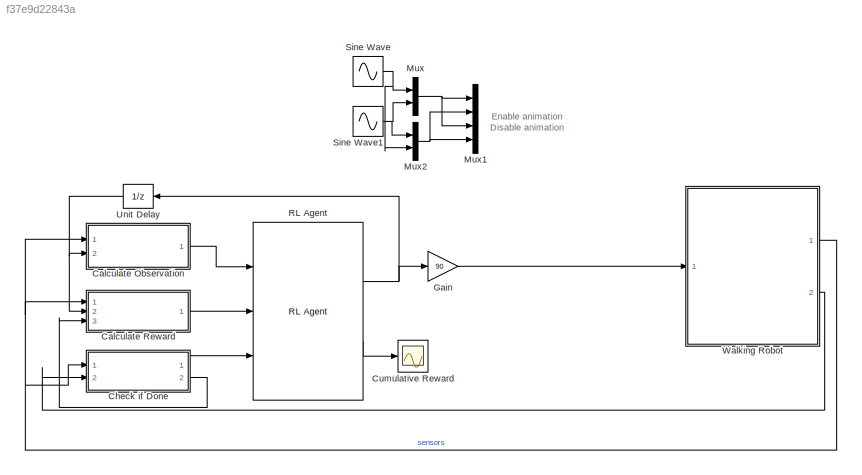
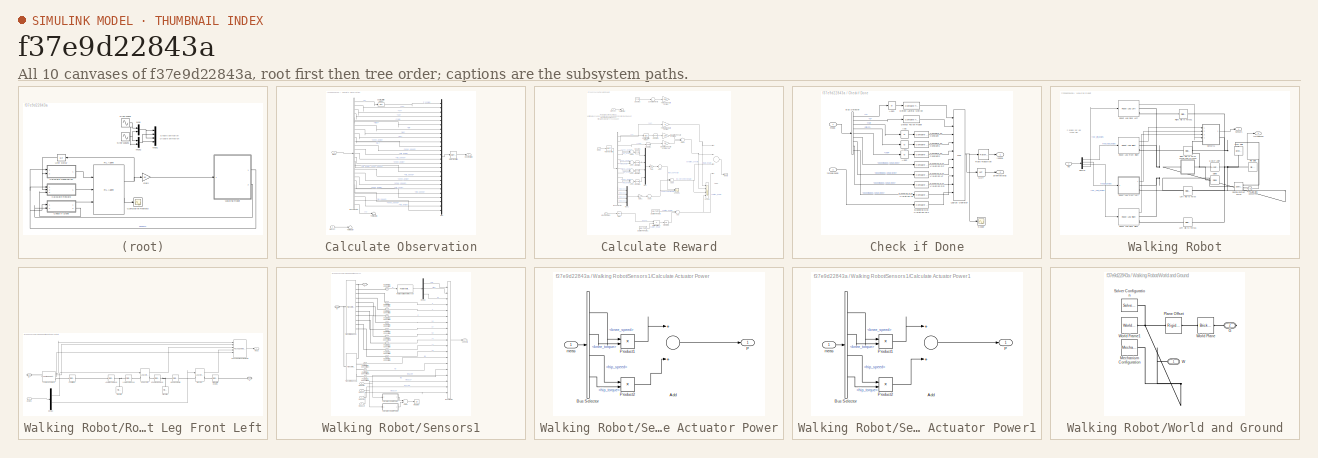
[diagram: thumbnail index - all 10 canvases of the model, root first then tree order]
MODEL slx_f37e9d22843a
KIND model
CONFIG AbsTol = auto
CONFIG EnableMultiTasking = on
CONFIG FixedStep = auto
CONFIG MaxStep = auto
CONFIG MinStep = auto
CONFIG PreLoadFcn = robotParameters\n
CONFIG RelTol = 1e-2
CONFIG SampleTimeConstraint = Unconstrained
CONFIG Solver = ode23t
CONFIG SolverName = ode23t
CONFIG StartTime = 0.0
CONFIG StopTime = Tf
BLOCK [SubSystem] Calculate Observation
  Ports = [2, 1]
  RequestExecContextInheritance = off
BLOCK [BusSelector] Calculate Observation/Bus Selector
  OutputAsBus = off
  OutputSignals = Z,VX,VY,VZ,yaw,pitch,roll,wx,wy,wz,measRF.knee_angle,measRF.knee_speed,measRF.hip_angle,measRF.hip_speed,measLF.knee_angle,measLF.knee_speed,measLF.hip_angle,measLF.hip_speed,measRR.knee_angle,measRR.knee_speed,measRR.hip_angle,measRR.hip_speed,measLR.knee_angle,measLR.knee_speed,measLR.hip_angle,measLR.hip_speed,Y
  Ports = [1, 27]
BLOCK [Mux] Calculate Observation/Mux
  DisplayOption = bar
  Inputs = 26
  Ports = [26, 1]
BLOCK [RateTransition] Calculate Observation/Rate Transition
BLOCK [Bias] Calculate Observation/Subtract Initial Height
  Bias = -init_height/100
  SaturateOnIntegerOverflow = off
BLOCK [Terminator] Calculate Observation/Terminator
BLOCK [Terminator] Calculate Observation/Terminator1
BLOCK [Inport] Calculate Observation/meas
  IconDisplay = Port number
BLOCK [Outport] Calculate Observation/observation
  IconDisplay = Port number
  VectorParamsAs1DForOutWhenUnconnected = off
BLOCK [Inport] Calculate Observation/prevAct
  IconDisplay = Port number
  Port = 2
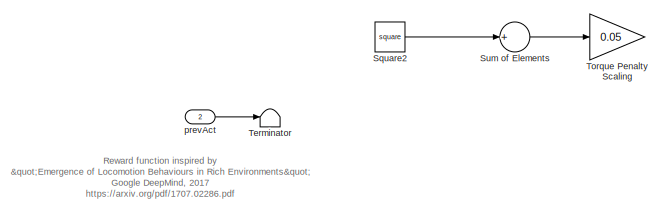
[diagram: Calculate Reward - part 1/2, top left region]
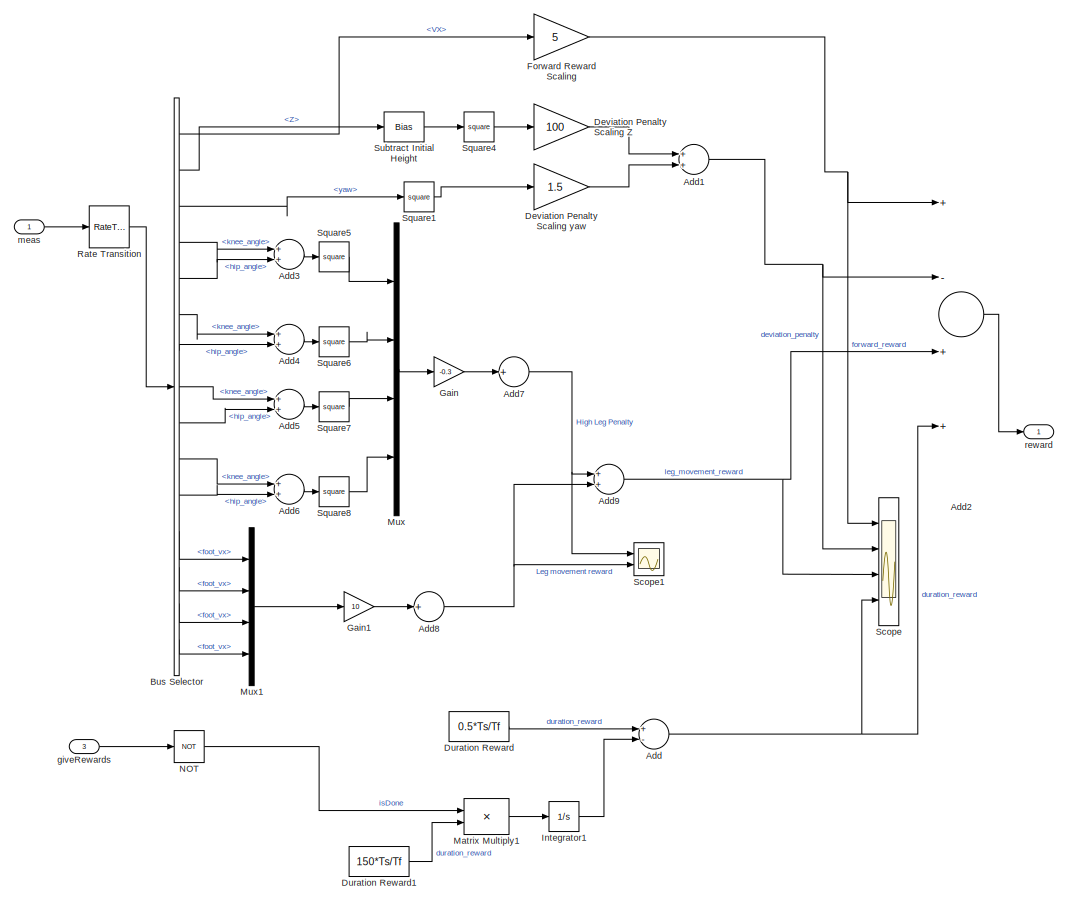
[diagram: Calculate Reward - part 2/2, most of the canvas]
BLOCK [SubSystem] Calculate Reward
  Ports = [3, 1]
  RequestExecContextInheritance = off
BLOCK [Sum] Calculate Reward/Add
  InputSameDT = off
  Inputs = +-
  OutDataTypeStr = Inherit: Inherit via internal rule
  Ports = [2, 1]
  SaturateOnIntegerOverflow = off
BLOCK [Sum] Calculate Reward/Add1
  InputSameDT = off
  OutDataTypeStr = Inherit: Inherit via internal rule
  Ports = [2, 1]
  SaturateOnIntegerOverflow = off
BLOCK [Sum] Calculate Reward/Add2
  InputSameDT = off
  Inputs = +-++
  OutDataTypeStr = Inherit: Inherit via internal rule
  Ports = [4, 1]
  SaturateOnIntegerOverflow = off
BLOCK [Sum] Calculate Reward/Add3
  InputSameDT = off
  OutDataTypeStr = Inherit: Inherit via internal rule
  Ports = [2, 1]
  SaturateOnIntegerOverflow = off
BLOCK [Sum] Calculate Reward/Add4
  InputSameDT = off
  OutDataTypeStr = Inherit: Inherit via internal rule
  Ports = [2, 1]
  SaturateOnIntegerOverflow = off
BLOCK [Sum] Calculate Reward/Add5
  InputSameDT = off
  OutDataTypeStr = Inherit: Inherit via internal rule
  Ports = [2, 1]
  SaturateOnIntegerOverflow = off
BLOCK [Sum] Calculate Reward/Add6
  InputSameDT = off
  OutDataTypeStr = Inherit: Inherit via internal rule
  Ports = [2, 1]
  SaturateOnIntegerOverflow = off
BLOCK [Sum] Calculate Reward/Add7
  InputSameDT = off
  Inputs = +
  OutDataTypeStr = Inherit: Inherit via internal rule
  Ports = [1, 1]
  SaturateOnIntegerOverflow = off
BLOCK [Sum] Calculate Reward/Add8
  InputSameDT = off
  Inputs = +
  OutDataTypeStr = Inherit: Inherit via internal rule
  Ports = [1, 1]
  SaturateOnIntegerOverflow = off
BLOCK [Sum] Calculate Reward/Add9
  InputSameDT = off
  OutDataTypeStr = Inherit: Inherit via internal rule
  Ports = [2, 1]
  SaturateOnIntegerOverflow = off
BLOCK [BusSelector] Calculate Reward/Bus Selector
  OutputAsBus = off
  OutputSignals = VX,Z,yaw,measRF.knee_angle,measRF.hip_angle,measLF.knee_angle,measLF.hip_angle,measRR.knee_angle,measRR.hip_angle,measLR.knee_angle,measLR.hip_angle,measRF.foot_vx,measLF.foot_vx,measRR.foot_vx,measLR.foot_vx
  Ports = [1, 15]
BLOCK [Gain] Calculate Reward/Deviation Penalty Scaling Z
  Gain = 100
  OutDataTypeStr = Inherit: Inherit via internal rule
  ParamDataTypeStr = Inherit: Inherit via internal rule
  SaturateOnIntegerOverflow = off
BLOCK [Gain] Calculate Reward/Deviation Penalty Scaling yaw
  Gain = 1.5
  OutDataTypeStr = Inherit: Inherit via internal rule
  ParamDataTypeStr = Inherit: Inherit via internal rule
  SaturateOnIntegerOverflow = off
BLOCK [Constant] Calculate Reward/Duration Reward
  Value = 0.5*Ts/Tf
BLOCK [Constant] Calculate Reward/Duration Reward1
  Value = 150*Ts/Tf
BLOCK [Gain] Calculate Reward/Forward Reward Scaling
  Gain = 5
  OutDataTypeStr = Inherit: Inherit via internal rule
  ParamDataTypeStr = Inherit: Inherit via internal rule
  SaturateOnIntegerOverflow = off
BLOCK [Gain] Calculate Reward/Gain
  Gain = -0.3
  OutDataTypeStr = Inherit: Inherit via internal rule
  ParamDataTypeStr = Inherit: Inherit via internal rule
  SaturateOnIntegerOverflow = off
BLOCK [Gain] Calculate Reward/Gain1
  Gain = 10
  OutDataTypeStr = Inherit: Inherit via internal rule
  ParamDataTypeStr = Inherit: Inherit via internal rule
  SaturateOnIntegerOverflow = off
BLOCK [Integrator] Calculate Reward/Integrator1
  Ports = [1, 1]
BLOCK [Product] Calculate Reward/Matrix Multiply1
  InputSameDT = off
  Multiplication = Matrix(*)
  OutDataTypeStr = Inherit: Inherit via internal rule
  Ports = [2, 1]
  RndMeth = Floor
  SaturateOnIntegerOverflow = off
BLOCK [Mux] Calculate Reward/Mux
  DisplayOption = bar
  Ports = [4, 1]
BLOCK [Mux] Calculate Reward/Mux1
  DisplayOption = bar
  Ports = [4, 1]
BLOCK [Logic] Calculate Reward/NOT
  AllPortsSameDT = off
  IconShape = distinctive
  Operator = NOT
  OutDataTypeStr = boolean
  Ports = [1, 1]
BLOCK [RateTransition] Calculate Reward/Rate Transition
  OutPortSampleTime = Ts
BLOCK [Scope] Calculate Reward/Scope
  Floating = off
  NumInputPorts = 4
  Ports = [4]
  ScopeSpecificationString = Simulink.scopes.TimeScopeBlockCfg('CurrentConfiguration', extmgr.ConfigurationSet(extmgr.Configuration('Core','General UI',true),extmgr.Configuration('Core','Source UI',true),extmgr.Configuration('Sources','WiredSimulink',true,'DataLoggingVariableName','ScopeData1'),extmgr.Configuration('Visuals','Time Domain',true,'SerializedDisplays',{struct('MinYLimReal','-0.02387','MaxYLimReal','0.0616','YLabe...<+1455ch>
BLOCK [Scope] Calculate Reward/Scope1
  Floating = off
  NumInputPorts = 2
  Ports = [2]
  ScopeSpecificationString = Simulink.scopes.TimeScopeBlockCfg('CurrentConfiguration', extmgr.ConfigurationSet(extmgr.Configuration('Core','General UI',true),extmgr.Configuration('Core','Source UI',true),extmgr.Configuration('Sources','WiredSimulink',true,'DataLoggingVariableName','ScopeData2'),extmgr.Configuration('Visuals','Time Domain',true,'SerializedDisplays',{struct('MinYLimReal','-1.00000','MaxYLimReal','1.00000','YLab...<+1425ch>
BLOCK [Math] Calculate Reward/Square1
  Operator = square
  Ports = [1, 1]
BLOCK [Math] Calculate Reward/Square2
  Commented = on
  Operator = square
  Ports = [1, 1]
BLOCK [Math] Calculate Reward/Square4
  Operator = square
  Ports = [1, 1]
BLOCK [Math] Calculate Reward/Square5
  Operator = square
  Ports = [1, 1]
BLOCK [Math] Calculate Reward/Square6
  Operator = square
  Ports = [1, 1]
BLOCK [Math] Calculate Reward/Square7
  Operator = square
  Ports = [1, 1]
BLOCK [Math] Calculate Reward/Square8
  Operator = square
  Ports = [1, 1]
BLOCK [Bias] Calculate Reward/Subtract Initial Height
  Bias = -init_height/100
  SaturateOnIntegerOverflow = off
BLOCK [Sum] Calculate Reward/Sum of Elements
  Commented = on
  InputSameDT = off
  Inputs = +
  OutDataTypeStr = Inherit: Inherit via internal rule
  Ports = [1, 1]
  SaturateOnIntegerOverflow = off
BLOCK [Terminator] Calculate Reward/Terminator
BLOCK [Gain] Calculate Reward/Torque Penalty Scaling
  Commented = on
  Gain = 0.05
  OutDataTypeStr = Inherit: Inherit via internal rule
  ParamDataTypeStr = Inherit: Inherit via internal rule
  SaturateOnIntegerOverflow = off
BLOCK [Inport] Calculate Reward/giveRewards
  IconDisplay = Port number
  Port = 3
BLOCK [Inport] Calculate Reward/meas
  IconDisplay = Port number
BLOCK [Inport] Calculate Reward/prevAct
  IconDisplay = Port number
  Port = 2
BLOCK [Outport] Calculate Reward/reward
  IconDisplay = Port number
  VectorParamsAs1DForOutWhenUnconnected = off
BLOCK [SubSystem] Check if Done
  Ports = [2, 2]
  RequestExecContextInheritance = off
BLOCK [Abs] Check if Done/Abs
  SaturateOnIntegerOverflow = off
BLOCK [Abs] Check if Done/Abs1
  SaturateOnIntegerOverflow = off
BLOCK [Abs] Check if Done/Abs2
  SaturateOnIntegerOverflow = off
BLOCK [Abs] Check if Done/Abs3
  SaturateOnIntegerOverflow = off
BLOCK [Reference] Check if Done/Bounding Box Violation LF  REF=simulink/Logic and Bit
Operations/Compare
To Constant
  Ports = [1, 1]
  SourceBlock = simulink/Logic and Bit\nOperations/Compare\nTo Constant
  SourceProductBaseCode = SL
  SourceProductName = Simulink
  SourceType = Compare To Constant
BLOCK [Reference] Check if Done/Bounding Box Violation LR  REF=simulink/Logic and Bit
Operations/Compare
To Constant
  Ports = [1, 1]
  SourceBlock = simulink/Logic and Bit\nOperations/Compare\nTo Constant
  SourceProductBaseCode = SL
  SourceProductName = Simulink
  SourceType = Compare To Constant
BLOCK [Reference] Check if Done/Bounding Box Violation LR1  REF=simulink/Logic and Bit
Operations/Compare
To Constant
  Ports = [1, 1]
  SourceBlock = simulink/Logic and Bit\nOperations/Compare\nTo Constant
  SourceProductBaseCode = SL
  SourceProductName = Simulink
  SourceType = Compare To Constant
BLOCK [Reference] Check if Done/Bounding Box Violation RF  REF=simulink/Logic and Bit
Operations/Compare
To Constant
  Ports = [1, 1]
  SourceBlock = simulink/Logic and Bit\nOperations/Compare\nTo Constant
  SourceProductBaseCode = SL
  SourceProductName = Simulink
  SourceType = Compare To Constant
BLOCK [Reference] Check if Done/Bounding Box Violation RR  REF=simulink/Logic and Bit
Operations/Compare
To Constant
  Ports = [1, 1]
  SourceBlock = simulink/Logic and Bit\nOperations/Compare\nTo Constant
  SourceProductBaseCode = SL
  SourceProductName = Simulink
  SourceType = Compare To Constant
BLOCK [BusSelector] Check if Done/Bus Selector
  OutputAsBus = off
  OutputSignals = Y,Z,roll,pitch,yaw,measRF.boundingbox_separation,measLF.boundingbox_separation,measRR.boundingbox_separation,measLR.boundingbox_separation
  Ports = [1, 9]
BLOCK [Reference] Check if Done/Compare To Constant  REF=simulink/Logic and Bit
Operations/Compare
To Constant
  Ports = [1, 1]
  SourceBlock = simulink/Logic and Bit\nOperations/Compare\nTo Constant
  SourceProductBaseCode = SL
  SourceProductName = Simulink
  SourceType = Compare To Constant
BLOCK [Reference] Check if Done/Compare To Constant1  REF=simulink/Logic and Bit
Operations/Compare
To Constant
  Ports = [1, 1]
  SourceBlock = simulink/Logic and Bit\nOperations/Compare\nTo Constant
  SourceProductBaseCode = SL
  SourceProductName = Simulink
  SourceType = Compare To Constant
BLOCK [Reference] Check if Done/Compare To Constant2  REF=simulink/Logic and Bit
Operations/Compare
To Constant
  Ports = [1, 1]
  SourceBlock = simulink/Logic and Bit\nOperations/Compare\nTo Constant
  SourceProductBaseCode = SL
  SourceProductName = Simulink
  SourceType = Compare To Constant
BLOCK [Reference] Check if Done/Detect Fallen Robot  REF=simulink/Logic and Bit
Operations/Compare
To Constant
  Ports = [1, 1]
  SourceBlock = simulink/Logic and Bit\nOperations/Compare\nTo Constant
  SourceProductBaseCode = SL
  SourceProductName = Simulink
  SourceType = Compare To Constant
BLOCK [Reference] Check if Done/Detect Lateral Motion  REF=simulink/Logic and Bit
Operations/Compare
To Constant
  Ports = [1, 1]
  SourceBlock = simulink/Logic and Bit\nOperations/Compare\nTo Constant
  SourceProductBaseCode = SL
  SourceProductName = Simulink
  SourceType = Compare To Constant
BLOCK [Logic] Check if Done/Logical Operator
  AllPortsSameDT = off
  Inputs = 10
  Operator = OR
  OutDataTypeStr = boolean
  Ports = [10, 1]
BLOCK [Logic] Check if Done/NOT
  AllPortsSameDT = off
  IconShape = distinctive
  Operator = NOT
  OutDataTypeStr = boolean
  Ports = [1, 1]
BLOCK [RateTransition] Check if Done/Rate Transition
BLOCK [Scope] Check if Done/Scope
  Floating = off
  NumInputPorts = 1
  Ports = [1]
  ScopeSpecificationString = Simulink.scopes.TimeScopeBlockCfg('CurrentConfiguration', extmgr.ConfigurationSet(extmgr.Configuration('Core','General UI',true),extmgr.Configuration('Core','Source UI',true),extmgr.Configuration('Sources','WiredSimulink',true,'DataLoggingVariableName','ScopeData1'),extmgr.Configuration('Visuals','Time Domain',true,'SerializedDisplays',{struct('MinYLimReal','-0.125','MaxYLimReal','1.125','YLabelRe...<+1392ch>
BLOCK [Outport] Check if Done/giveRewards
  IconDisplay = Port number
  Port = 2
  VectorParamsAs1DForOutWhenUnconnected = off
BLOCK [Outport] Check if Done/isdone
  IconDisplay = Port number
  VectorParamsAs1DForOutWhenUnconnected = off
BLOCK [Inport] Check if Done/meas
  IconDisplay = Port number
BLOCK [Inport] Check if Done/torsoBound
  IconDisplay = Port number
  Port = 2
BLOCK [Scope] Cumulative Reward
  Floating = off
  NumInputPorts = 1
  Ports = [1]
  ScopeSpecificationString = Simulink.scopes.TimeScopeBlockCfg('CurrentConfiguration', extmgr.ConfigurationSet(extmgr.Configuration('Core','General UI',true),extmgr.Configuration('Core','Source UI',true),extmgr.Configuration('Sources','WiredSimulink',true),extmgr.Configuration('Visuals','Time Domain',true,'SerializedDisplays',{struct('MinYLimReal','-138.39826','MaxYLimReal','15.37758','YLabelReal','','MinYLimMag',' 0.00000','...<+1394ch>
BLOCK [Gain] Gain
  Gain = 90
  OutDataTypeStr = Inherit: Inherit via internal rule
  ParamDataTypeStr = Inherit: Inherit via internal rule
  SaturateOnIntegerOverflow = off
BLOCK [Mux] Mux
  Commented = on
  DisplayOption = bar
  Inputs = 2
  Ports = [2, 1]
BLOCK [Mux] Mux1
  Commented = on
  DisplayOption = bar
  Ports = [4, 1]
BLOCK [Mux] Mux2
  Commented = on
  DisplayOption = bar
  Inputs = 2
  Ports = [2, 1]
BLOCK [Reference] RL Agent  REF=rllib/RL Agent
  Ports = [3, 2]
  SourceBlock = rllib/RL Agent
  SourceProductName = Reinforcement Learning
  SourceType = RL Agent
BLOCK [Sin] Sine Wave
  Amplitude = 30
  Commented = on
  Frequency = 0.5
  Ports = [0, 1]
  SampleTime = 0
BLOCK [Sin] Sine Wave1
  Amplitude = 30
  Commented = on
  Frequency = 0.5
  Phase = pi/2
  Ports = [0, 1]
  SampleTime = 0
BLOCK [UnitDelay] Unit Delay
  HasFrameUpgradeWarning = on
  SampleTime = -1
BLOCK [SubSystem] Walking Robot
  Ports = [1, 2]
  RequestExecContextInheritance = off
BLOCK [Reference] Walking Robot/6-DOF Joint  REF=sm_lib/Joints/6-DOF Joint
  Ports = [0, 0, 0, 0, 0, 1, 1]
  SourceBlock = sm_lib/Joints/6-DOF Joint
  SourceProductBaseCode = MS
  SourceProductName = Simscape Multibody
  SourceType = 6-DOF Joint
BLOCK [Reference] Walking Robot/Brick Solid  REF=sm_lib/Body Elements/Brick Solid
  Ports = [0, 0, 0, 0, 0, 1, 1]
  SourceBlock = sm_lib/Body Elements/Brick Solid
  SourceProductBaseCode = MS
  SourceProductName = Simscape Multibody
  SourceType = Brick Solid
BLOCK [Demux] Walking Robot/Demux
  DisplayOption = bar
  Ports = [1, 4]
BLOCK [Reference] Walking Robot/File Solid  REF=sm_lib/Body Elements/File Solid
  Ports = [0, 0, 0, 0, 0, 1, 1]
  SourceBlock = sm_lib/Body Elements/File Solid
  SourceProductBaseCode = MS
  SourceProductName = Simscape Multibody
  SourceType = File Solid
BLOCK [Reference] Walking Robot/Left Hip to Torso  REF=sm_lib/Frames and
Transforms/Rigid
Transform
  Ports = [0, 0, 0, 0, 0, 1, 1]
  SourceBlock = sm_lib/Frames and\nTransforms/Rigid\nTransform
  SourceProductBaseCode = MS
  SourceProductName = Simscape Multibody
  SourceType = Rigid\nTransform
BLOCK [Reference] Walking Robot/Left Hip to Torso1  REF=sm_lib/Frames and
Transforms/Rigid
Transform
  Ports = [0, 0, 0, 0, 0, 1, 1]
  SourceBlock = sm_lib/Frames and\nTransforms/Rigid\nTransform
  SourceProductBaseCode = MS
  SourceProductName = Simscape Multibody
  SourceType = Rigid\nTransform
BLOCK [Reference] Walking Robot/PS-Simulink Converter  REF=nesl_utility/PS-Simulink
Converter
  Ports = [0, 1, 0, 0, 0, 1]
  SourceBlock = nesl_utility/PS-Simulink\nConverter
  SourceProductBaseCode = SS
  SourceProductName = Simscape
  SourceType = PS-Simulink\nConverter
BLOCK [Reference] Walking Robot/Right Hip to Torso  REF=sm_lib/Frames and
Transforms/Rigid
Transform
  Ports = [0, 0, 0, 0, 0, 1, 1]
  SourceBlock = sm_lib/Frames and\nTransforms/Rigid\nTransform
  SourceProductBaseCode = MS
  SourceProductName = Simscape Multibody
  SourceType = Rigid\nTransform
BLOCK [Reference] Walking Robot/Right Hip to Torso1  REF=sm_lib/Frames and
Transforms/Rigid
Transform
  Ports = [0, 0, 0, 0, 0, 1, 1]
  SourceBlock = sm_lib/Frames and\nTransforms/Rigid\nTransform
  SourceProductBaseCode = MS
  SourceProductName = Simscape Multibody
  SourceType = Rigid\nTransform
BLOCK [SubSystem] Walking Robot/Robot Leg Front Left
  AncestorBlock = walkingRobotUtils/Robot Leg Left
  Ports = [1, 1, 0, 0, 0, 0, 2]
  RequestExecContextInheritance = off
BLOCK [Reference] Walking Robot/Robot Leg Front Left/Ankle to Lower Leg  REF=sm_lib/Frames and
Transforms/Rigid
Transform
  Ports = [0, 0, 0, 0, 0, 1, 1]
  SourceBlock = sm_lib/Frames and\nTransforms/Rigid\nTransform
  SourceProductBaseCode = MS
  SourceProductName = Simscape Multibody
  SourceType = Rigid\nTransform
BLOCK [Demux] Walking Robot/Robot Leg Front Left/Demux
  DisplayOption = bar
  Outputs = 2
  Ports = [1, 2]
BLOCK [Reference] Walking Robot/Robot Leg Front Left/File Solid  REF=sm_lib/Body Elements/File Solid
  Ports = [0, 0, 0, 0, 0, 1, 1]
  SourceBlock = sm_lib/Body Elements/File Solid
  SourceProductBaseCode = MS
  SourceProductName = Simscape Multibody
  SourceType = File Solid
BLOCK [Reference] Walking Robot/Robot Leg Front Left/File Solid1  REF=sm_lib/Body Elements/File Solid
  Ports = [0, 0, 0, 0, 0, 1, 1]
  SourceBlock = sm_lib/Body Elements/File Solid
  SourceProductBaseCode = MS
  SourceProductName = Simscape Multibody
  SourceType = File Solid
BLOCK [Reference] Walking Robot/Robot Leg Front Left/Foot Offset  REF=sm_lib/Frames and
Transforms/Rigid
Transform
  Ports = [0, 0, 0, 0, 0, 1, 1]
  SourceBlock = sm_lib/Frames and\nTransforms/Rigid\nTransform
  SourceProductBaseCode = MS
  SourceProductName = Simscape Multibody
  SourceType = Rigid\nTransform
BLOCK [Reference] Walking Robot/Robot Leg Front Left/Foot and Contact1  REF=walkingRobotUtils/Foot and Contact
  Ports = [0, 4, 0, 0, 0, 1, 1]
  SourceBlock = walkingRobotUtils/Foot and Contact
  SourceType = SubSystem
BLOCK [PMIOPort] Walking Robot/Robot Leg Front Left/G
  Side = Right
BLOCK [PMIOPort] Walking Robot/Robot Leg Front Left/H
  Port = 2
  Side = Right
BLOCK [Reference] Walking Robot/Robot Leg Front Left/Hip Joint  REF=walkingRobotUtils/Leg Joint with Limits
  Ports = [1, 1, 0, 0, 0, 1, 1]
  SourceBlock = walkingRobotUtils/Leg Joint with Limits
  SourceType = Leg Joint with Limits
BLOCK [Reference] Walking Robot/Robot Leg Front Left/Hip to World Coords  REF=sm_lib/Frames and
Transforms/Rigid
Transform
  Ports = [0, 0, 0, 0, 0, 1, 1]
  SourceBlock = sm_lib/Frames and\nTransforms/Rigid\nTransform
  SourceProductBaseCode = MS
  SourceProductName = Simscape Multibody
  SourceType = Rigid\nTransform
BLOCK [Reference] Walking Robot/Robot Leg Front Left/Knee Joint  REF=walkingRobotUtils/Leg Joint with Limits
  Ports = [1, 1, 0, 0, 0, 1, 1]
  SourceBlock = walkingRobotUtils/Leg Joint with Limits
  SourceType = Leg Joint with Limits
BLOCK [Reference] Walking Robot/Robot Leg Front Left/Knee to Upper Leg  REF=sm_lib/Frames and
Transforms/Rigid
Transform
  Ports = [0, 0, 0, 0, 0, 1, 1]
  SourceBlock = sm_lib/Frames and\nTransforms/Rigid\nTransform
  SourceProductBaseCode = MS
  SourceProductName = Simscape Multibody
  SourceType = Rigid\nTransform
BLOCK [Reference] Walking Robot/Robot Leg Front Left/Lower Leg to Knee  REF=sm_lib/Frames and
Transforms/Rigid
Transform
  Ports = [0, 0, 0, 0, 0, 1, 1]
  SourceBlock = sm_lib/Frames and\nTransforms/Rigid\nTransform
  SourceProductBaseCode = MS
  SourceProductName = Simscape Multibody
  SourceType = Rigid\nTransform
BLOCK [Reference] Walking Robot/Robot Leg Front Left/Package Measurements  REF=walkingRobotUtils/Package 
Measurements 2D
  Ports = [6, 1]
  SourceBlock = walkingRobotUtils/Package \nMeasurements 2D
  SourceType = SubSystem
BLOCK [Reference] Walking Robot/Robot Leg Front Left/Upper Leg to Hip  REF=sm_lib/Frames and
Transforms/Rigid
Transform
  Ports = [0, 0, 0, 0, 0, 1, 1]
  SourceBlock = sm_lib/Frames and\nTransforms/Rigid\nTransform
  SourceProductBaseCode = MS
  SourceProductName = Simscape Multibody
  SourceType = Rigid\nTransform
BLOCK [Inport] Walking Robot/Robot Leg Front Left/angles
  IconDisplay = Port number
BLOCK [Outport] Walking Robot/Robot Leg Front Left/meas
  IconDisplay = Port number
  VectorParamsAs1DForOutWhenUnconnected = off
BLOCK [Reference] Walking Robot/Robot Leg Front Right  REF=walkingRobotUtils/Robot Leg Right
  Ports = [1, 1, 0, 0, 0, 0, 2]
  SourceBlock = walkingRobotUtils/Robot Leg Right
  SourceType = SubSystem
BLOCK [Reference] Walking Robot/Robot Leg Rear Left  REF=walkingRobotUtils/Robot Leg Left
  Ports = [1, 1, 0, 0, 0, 0, 2]
  SourceBlock = walkingRobotUtils/Robot Leg Left
  SourceType = SubSystem
BLOCK [Reference] Walking Robot/Robot Leg Rear Right  REF=walkingRobotUtils/Robot Leg Right
  Ports = [1, 1, 0, 0, 0, 0, 2]
  SourceBlock = walkingRobotUtils/Robot Leg Right
  SourceType = SubSystem
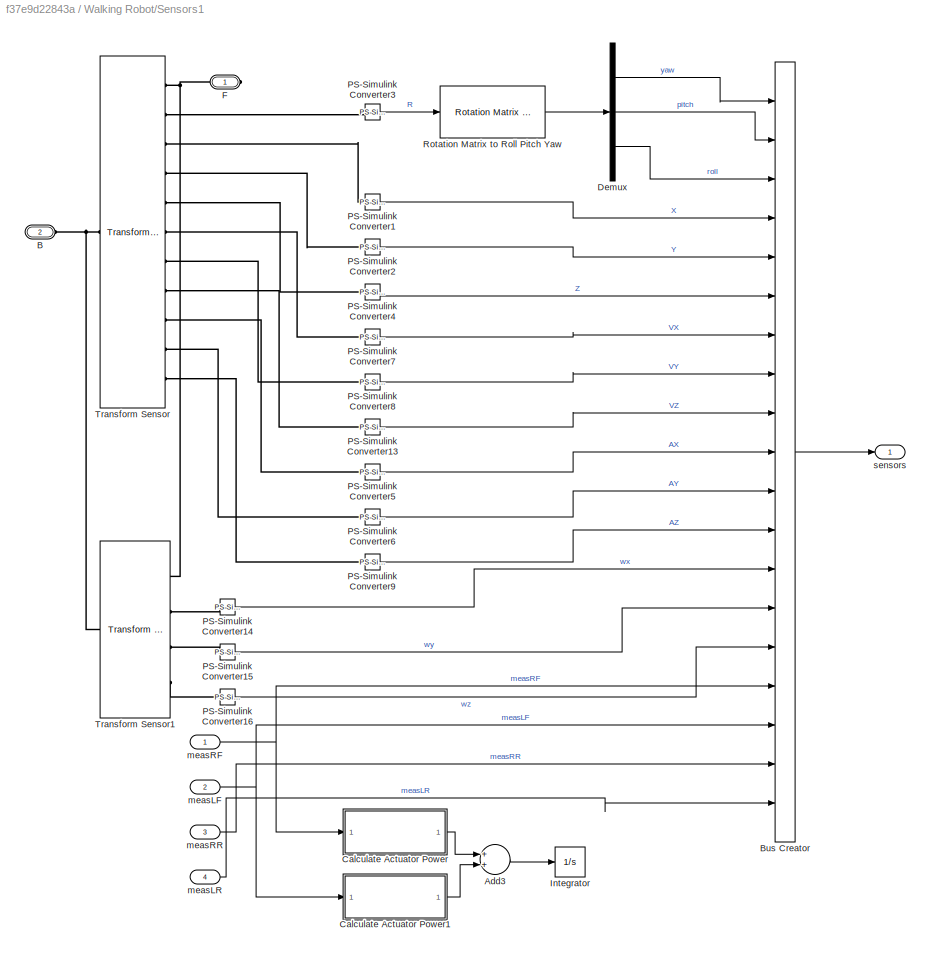
BLOCK [SubSystem] Walking Robot/Sensors1
  Ports = [4, 1, 0, 0, 0, 1, 1]
  RequestExecContextInheritance = off
BLOCK [Sum] Walking Robot/Sensors1/Add3
  Commented = on
  InputSameDT = off
  OutDataTypeStr = Inherit: Inherit via internal rule
  Ports = [2, 1]
  SaturateOnIntegerOverflow = off
BLOCK [PMIOPort] Walking Robot/Sensors1/B
  Port = 2
  Side = Left
BLOCK [BusCreator] Walking Robot/Sensors1/Bus Creator
  DisplayOption = bar
  InheritFromInputs = on
  Inputs = 19
  Ports = [19, 1]
BLOCK [SubSystem] Walking Robot/Sensors1/Calculate Actuator Power
  Commented = on
  Ports = [1, 1]
  RequestExecContextInheritance = off
BLOCK [Sum] Walking Robot/Sensors1/Calculate Actuator Power/Add
  InputSameDT = off
  Inputs = 2
  OutDataTypeStr = Inherit: Inherit via internal rule
  Ports = [2, 1]
  SaturateOnIntegerOverflow = off
BLOCK [BusSelector] Walking Robot/Sensors1/Calculate Actuator Power/Bus Selector
  OutputAsBus = off
  OutputSignals = knee_speed,knee_torque,hip_speed,hip_torque
  Ports = [1, 4]
BLOCK [Outport] Walking Robot/Sensors1/Calculate Actuator Power/P
  IconDisplay = Port number
  VectorParamsAs1DForOutWhenUnconnected = off
BLOCK [Product] Walking Robot/Sensors1/Calculate Actuator Power/Product1
  InputSameDT = off
  OutDataTypeStr = Inherit: Inherit via internal rule
  Ports = [2, 1]
  RndMeth = Floor
  SaturateOnIntegerOverflow = off
BLOCK [Product] Walking Robot/Sensors1/Calculate Actuator Power/Product2
  InputSameDT = off
  OutDataTypeStr = Inherit: Inherit via internal rule
  Ports = [2, 1]
  RndMeth = Floor
  SaturateOnIntegerOverflow = off
BLOCK [Inport] Walking Robot/Sensors1/Calculate Actuator Power/meas
  IconDisplay = Port number
BLOCK [SubSystem] Walking Robot/Sensors1/Calculate Actuator Power1
  Commented = on
  Ports = [1, 1]
  RequestExecContextInheritance = off
BLOCK [Sum] Walking Robot/Sensors1/Calculate Actuator Power1/Add
  InputSameDT = off
  Inputs = 2
  OutDataTypeStr = Inherit: Inherit via internal rule
  Ports = [2, 1]
  SaturateOnIntegerOverflow = off
BLOCK [BusSelector] Walking Robot/Sensors1/Calculate Actuator Power1/Bus Selector
  OutputAsBus = off
  OutputSignals = knee_speed,knee_torque,hip_speed,hip_torque
  Ports = [1, 4]
BLOCK [Outport] Walking Robot/Sensors1/Calculate Actuator Power1/P
  IconDisplay = Port number
  VectorParamsAs1DForOutWhenUnconnected = off
BLOCK [Product] Walking Robot/Sensors1/Calculate Actuator Power1/Product1
  InputSameDT = off
  OutDataTypeStr = Inherit: Inherit via internal rule
  Ports = [2, 1]
  RndMeth = Floor
  SaturateOnIntegerOverflow = off
BLOCK [Product] Walking Robot/Sensors1/Calculate Actuator Power1/Product2
  InputSameDT = off
  OutDataTypeStr = Inherit: Inherit via internal rule
  Ports = [2, 1]
  RndMeth = Floor
  SaturateOnIntegerOverflow = off
BLOCK [Inport] Walking Robot/Sensors1/Calculate Actuator Power1/meas
  IconDisplay = Port number
BLOCK [Demux] Walking Robot/Sensors1/Demux
  DisplayOption = bar
  Outputs = 3
  Ports = [1, 3]
BLOCK [PMIOPort] Walking Robot/Sensors1/F
  Side = Right
BLOCK [Integrator] Walking Robot/Sensors1/Integrator
  Commented = on
  Ports = [1, 1]
BLOCK [Reference] Walking Robot/Sensors1/PS-Simulink Converter1  REF=nesl_utility/PS-Simulink
Converter
  Ports = [0, 1, 0, 0, 0, 1]
  SourceBlock = nesl_utility/PS-Simulink\nConverter
  SourceProductBaseCode = SS
  SourceType = PS-Simulink\nConverter
BLOCK [Reference] Walking Robot/Sensors1/PS-Simulink Converter13  REF=nesl_utility/PS-Simulink
Converter
  Ports = [0, 1, 0, 0, 0, 1]
  SourceBlock = nesl_utility/PS-Simulink\nConverter
  SourceProductBaseCode = SS
  SourceType = PS-Simulink\nConverter
BLOCK [Reference] Walking Robot/Sensors1/PS-Simulink Converter14  REF=nesl_utility/PS-Simulink
Converter
  Ports = [0, 1, 0, 0, 0, 1]
  SourceBlock = nesl_utility/PS-Simulink\nConverter
  SourceProductBaseCode = SS
  SourceType = PS-Simulink\nConverter
BLOCK [Reference] Walking Robot/Sensors1/PS-Simulink Converter15  REF=nesl_utility/PS-Simulink
Converter
  Ports = [0, 1, 0, 0, 0, 1]
  SourceBlock = nesl_utility/PS-Simulink\nConverter
  SourceProductBaseCode = SS
  SourceType = PS-Simulink\nConverter
BLOCK [Reference] Walking Robot/Sensors1/PS-Simulink Converter16  REF=nesl_utility/PS-Simulink
Converter
  Ports = [0, 1, 0, 0, 0, 1]
  SourceBlock = nesl_utility/PS-Simulink\nConverter
  SourceProductBaseCode = SS
  SourceType = PS-Simulink\nConverter
BLOCK [Reference] Walking Robot/Sensors1/PS-Simulink Converter2  REF=nesl_utility/PS-Simulink
Converter
  Ports = [0, 1, 0, 0, 0, 1]
  SourceBlock = nesl_utility/PS-Simulink\nConverter
  SourceProductBaseCode = SS
  SourceType = PS-Simulink\nConverter
BLOCK [Reference] Walking Robot/Sensors1/PS-Simulink Converter3  REF=nesl_utility/PS-Simulink
Converter
  Ports = [0, 1, 0, 0, 0, 1]
  SourceBlock = nesl_utility/PS-Simulink\nConverter
  SourceProductBaseCode = SS
  SourceType = PS-Simulink\nConverter
BLOCK [Reference] Walking Robot/Sensors1/PS-Simulink Converter4  REF=nesl_utility/PS-Simulink
Converter
  Ports = [0, 1, 0, 0, 0, 1]
  SourceBlock = nesl_utility/PS-Simulink\nConverter
  SourceProductBaseCode = SS
  SourceType = PS-Simulink\nConverter
BLOCK [Reference] Walking Robot/Sensors1/PS-Simulink Converter5  REF=nesl_utility/PS-Simulink
Converter
  Ports = [0, 1, 0, 0, 0, 1]
  SourceBlock = nesl_utility/PS-Simulink\nConverter
  SourceProductBaseCode = SS
  SourceType = PS-Simulink\nConverter
BLOCK [Reference] Walking Robot/Sensors1/PS-Simulink Converter6  REF=nesl_utility/PS-Simulink
Converter
  Ports = [0, 1, 0, 0, 0, 1]
  SourceBlock = nesl_utility/PS-Simulink\nConverter
  SourceProductBaseCode = SS
  SourceType = PS-Simulink\nConverter
BLOCK [Reference] Walking Robot/Sensors1/PS-Simulink Converter7  REF=nesl_utility/PS-Simulink
Converter
  Ports = [0, 1, 0, 0, 0, 1]
  SourceBlock = nesl_utility/PS-Simulink\nConverter
  SourceProductBaseCode = SS
  SourceType = PS-Simulink\nConverter
BLOCK [Reference] Walking Robot/Sensors1/PS-Simulink Converter8  REF=nesl_utility/PS-Simulink
Converter
  Ports = [0, 1, 0, 0, 0, 1]
  SourceBlock = nesl_utility/PS-Simulink\nConverter
  SourceProductBaseCode = SS
  SourceType = PS-Simulink\nConverter
BLOCK [Reference] Walking Robot/Sensors1/PS-Simulink Converter9  REF=nesl_utility/PS-Simulink
Converter
  Ports = [0, 1, 0, 0, 0, 1]
  SourceBlock = nesl_utility/PS-Simulink\nConverter
  SourceProductBaseCode = SS
  SourceType = PS-Simulink\nConverter
BLOCK [Reference] Walking Robot/Sensors1/Rotation Matrix to Roll Pitch Yaw  REF=walkingRobotUtils/Rotation Matrix to 
Roll Pitch Yaw
  Ports = [1, 1]
  SourceBlock = walkingRobotUtils/Rotation Matrix to \nRoll Pitch Yaw
  SourceType = SubSystem
BLOCK [Reference] Walking Robot/Sensors1/Transform Sensor  REF=sm_lib/Frames and
Transforms/Transform
Sensor
  Ports = [0, 0, 0, 0, 0, 1, 11]
  SourceBlock = sm_lib/Frames and\nTransforms/Transform\nSensor
  SourceProductBaseCode = MS
  SourceType = Transform\nSensor
BLOCK [Reference] Walking Robot/Sensors1/Transform Sensor1  REF=sm_lib/Frames and
Transforms/Transform
Sensor
  Ports = [0, 0, 0, 0, 0, 1, 4]
  SourceBlock = sm_lib/Frames and\nTransforms/Transform\nSensor
  SourceProductBaseCode = MS
  SourceType = Transform\nSensor
BLOCK [Inport] Walking Robot/Sensors1/measLF
  IconDisplay = Port number
  Port = 2
BLOCK [Inport] Walking Robot/Sensors1/measLR
  IconDisplay = Port number
  Port = 4
BLOCK [Inport] Walking Robot/Sensors1/measRF
  IconDisplay = Port number
BLOCK [Inport] Walking Robot/Sensors1/measRR
  IconDisplay = Port number
  Port = 3
BLOCK [Outport] Walking Robot/Sensors1/sensors
  IconDisplay = Port number
  VectorParamsAs1DForOutWhenUnconnected = off
BLOCK [Reference] Walking Robot/Spatial Contact Force  REF=sm_lib/Forces and
Torques/Spatial
Contact Force
  Ports = [0, 0, 0, 0, 0, 1, 2]
  SourceBlock = sm_lib/Forces and\nTorques/Spatial\nContact Force
  SourceProductBaseCode = MS
  SourceProductName = Simscape Multibody
  SourceType = Spatial\nContact Force
BLOCK [Reference] Walking Robot/Spline  REF=sm_lib/Curves and Surfaces/Spline
  Ports = [0, 0, 0, 0, 0, 1, 1]
  SourceBlock = sm_lib/Curves and Surfaces/Spline
  SourceProductBaseCode = MS
  SourceProductName = Simscape Multibody
  SourceType = Spline
BLOCK [SubSystem] Walking Robot/World and Ground
  Ports = [0, 0, 0, 0, 0, 1, 1]
  RequestExecContextInheritance = off
BLOCK [PMIOPort] Walking Robot/World and Ground/G
  Port = 2
  Side = Right
BLOCK [Reference] Walking Robot/World and Ground/Mechanism Configuration  REF=sm_lib/Utilities/Mechanism
Configuration
  Ports = [0, 0, 0, 0, 0, 0, 1]
  SourceBlock = sm_lib/Utilities/Mechanism\nConfiguration
  SourceProductBaseCode = MS
  SourceProductName = Simscape Multibody
  SourceType = Mechanism\nConfiguration
BLOCK [Reference] Walking Robot/World and Ground/Plane Offset  REF=sm_lib/Frames and
Transforms/Rigid
Transform
  Ports = [0, 0, 0, 0, 0, 1, 1]
  SourceBlock = sm_lib/Frames and\nTransforms/Rigid\nTransform
  SourceProductBaseCode = MS
  SourceProductName = Simscape Multibody
  SourceType = Rigid\nTransform
BLOCK [Reference] Walking Robot/World and Ground/Solver Configuration  REF=nesl_utility/Solver
Configuration
  Ports = [0, 0, 0, 0, 0, 0, 1]
  SourceBlock = nesl_utility/Solver\nConfiguration
  SourceProductBaseCode = SS
  SourceProductName = Simscape
  SourceType = Solver\nConfiguration
BLOCK [PMIOPort] Walking Robot/World and Ground/W
  Side = Left
BLOCK [Reference] Walking Robot/World and Ground/World Frame1  REF=sm_lib/Frames and
Transforms/World Frame
  Ports = [0, 0, 0, 0, 0, 0, 1]
  SourceBlock = sm_lib/Frames and\nTransforms/World Frame
  SourceProductBaseCode = MS
  SourceProductName = Simscape Multibody
  SourceType = World Frame
BLOCK [Reference] Walking Robot/World and Ground/World Plane  REF=sm_lib/Body Elements/Brick Solid
  Ports = [0, 0, 0, 0, 0, 1, 1]
  SourceBlock = sm_lib/Body Elements/Brick Solid
  SourceProductBaseCode = MS
  SourceProductName = Simscape Multibody
  SourceType = Brick Solid
BLOCK [Inport] Walking Robot/inp
  IconDisplay = Port number
BLOCK [Outport] Walking Robot/sensors
  IconDisplay = Port number
  VectorParamsAs1DForOutWhenUnconnected = off
BLOCK [Outport] Walking Robot/torsoBound
  IconDisplay = Port number
  Port = 2
  VectorParamsAs1DForOutWhenUnconnected = off
ANNOTATION (root): Enable animation Disable animation
ANNOTATION Calculate Reward: Reward function inspired by "Emergence of Locomotion Behaviours in Rich Environments" Google DeepMind, 2017 https://arxiv.org/pdf/1707.02286.pdf
ANNOTATION Walking Robot: 2 angles per leg (knee hip)
LINE Calculate Observation/Bus Selector:1 -> Calculate Observation/Subtract Initial Height:1
LINE Calculate Observation/Bus Selector:10 -> Calculate Observation/Mux:10
LINE Calculate Observation/Bus Selector:11 -> Calculate Observation/Mux:11
LINE Calculate Observation/Bus Selector:12 -> Calculate Observation/Mux:12
LINE Calculate Observation/Bus Selector:13 -> Calculate Observation/Mux:13
LINE Calculate Observation/Bus Selector:14 -> Calculate Observation/Mux:14
LINE Calculate Observation/Bus Selector:15 -> Calculate Observation/Mux:15
LINE Calculate Observation/Bus Selector:16 -> Calculate Observation/Mux:16
LINE Calculate Observation/Bus Selector:17 -> Calculate Observation/Mux:17
LINE Calculate Observation/Bus Selector:18 -> Calculate Observation/Mux:18
LINE Calculate Observation/Bus Selector:19 -> Calculate Observation/Mux:19
LINE Calculate Observation/Bus Selector:2 -> Calculate Observation/Mux:2
LINE Calculate Observation/Bus Selector:20 -> Calculate Observation/Mux:20
LINE Calculate Observation/Bus Selector:21 -> Calculate Observation/Mux:21
LINE Calculate Observation/Bus Selector:22 -> Calculate Observation/Mux:22
LINE Calculate Observation/Bus Selector:23 -> Calculate Observation/Mux:23
LINE Calculate Observation/Bus Selector:24 -> Calculate Observation/Mux:24
LINE Calculate Observation/Bus Selector:25 -> Calculate Observation/Mux:25
LINE Calculate Observation/Bus Selector:26 -> Calculate Observation/Mux:26
LINE Calculate Observation/Bus Selector:27 -> Calculate Observation/Terminator1:1
LINE Calculate Observation/Bus Selector:3 -> Calculate Observation/Mux:3
LINE Calculate Observation/Bus Selector:4 -> Calculate Observation/Mux:4
LINE Calculate Observation/Bus Selector:5 -> Calculate Observation/Mux:5
LINE Calculate Observation/Bus Selector:6 -> Calculate Observation/Mux:6
LINE Calculate Observation/Bus Selector:7 -> Calculate Observation/Mux:7
LINE Calculate Observation/Bus Selector:8 -> Calculate Observation/Mux:8
LINE Calculate Observation/Bus Selector:9 -> Calculate Observation/Mux:9
LINE Calculate Observation/Mux:1 -> Calculate Observation/Rate Transition:1
LINE Calculate Observation/Rate Transition:1 -> Calculate Observation/observation:1
LINE Calculate Observation/Subtract Initial Height:1 -> Calculate Observation/Mux:1
LINE Calculate Observation/meas:1 -> Calculate Observation/Bus Selector:1
LINE Calculate Observation/prevAct:1 -> Calculate Observation/Terminator:1
LINE Calculate Observation:1 -> RL Agent:1
NET Calculate Reward/Add1:1 -> Calculate Reward/Add2:2, Calculate Reward/Scope:2
LINE Calculate Reward/Add2:1 -> Calculate Reward/reward:1
LINE Calculate Reward/Add3:1 -> Calculate Reward/Square5:1
LINE Calculate Reward/Add4:1 -> Calculate Reward/Square6:1
LINE Calculate Reward/Add5:1 -> Calculate Reward/Square7:1
LINE Calculate Reward/Add6:1 -> Calculate Reward/Square8:1
NET Calculate Reward/Add7:1 -> Calculate Reward/Add9:1, Calculate Reward/Scope1:1
NET Calculate Reward/Add8:1 -> Calculate Reward/Add9:2, Calculate Reward/Scope1:2
NET Calculate Reward/Add9:1 -> Calculate Reward/Add2:3, Calculate Reward/Scope:3
NET Calculate Reward/Add:1 -> Calculate Reward/Add2:4, Calculate Reward/Scope:4
LINE Calculate Reward/Bus Selector:1 -> Calculate Reward/Forward Reward Scaling:1
LINE Calculate Reward/Bus Selector:10 -> Calculate Reward/Add6:1
LINE Calculate Reward/Bus Selector:11 -> Calculate Reward/Add6:2
LINE Calculate Reward/Bus Selector:12 -> Calculate Reward/Mux1:1
LINE Calculate Reward/Bus Selector:13 -> Calculate Reward/Mux1:2
LINE Calculate Reward/Bus Selector:14 -> Calculate Reward/Mux1:3
LINE Calculate Reward/Bus Selector:15 -> Calculate Reward/Mux1:4
LINE Calculate Reward/Bus Selector:2 -> Calculate Reward/Subtract Initial Height:1
LINE Calculate Reward/Bus Selector:3 -> Calculate Reward/Square1:1
LINE Calculate Reward/Bus Selector:4 -> Calculate Reward/Add3:1
LINE Calculate Reward/Bus Selector:5 -> Calculate Reward/Add3:2
LINE Calculate Reward/Bus Selector:6 -> Calculate Reward/Add4:1
LINE Calculate Reward/Bus Selector:7 -> Calculate Reward/Add4:2
LINE Calculate Reward/Bus Selector:8 -> Calculate Reward/Add5:1
LINE Calculate Reward/Bus Selector:9 -> Calculate Reward/Add5:2
LINE Calculate Reward/Deviation Penalty Scaling Z:1 -> Calculate Reward/Add1:1
LINE Calculate Reward/Deviation Penalty Scaling yaw:1 -> Calculate Reward/Add1:2
LINE Calculate Reward/Duration Reward1:1 -> Calculate Reward/Matrix Multiply1:2
LINE Calculate Reward/Duration Reward:1 -> Calculate Reward/Add:1
NET Calculate Reward/Forward Reward Scaling:1 -> Calculate Reward/Add2:1, Calculate Reward/Scope:1
LINE Calculate Reward/Gain1:1 -> Calculate Reward/Add8:1
LINE Calculate Reward/Gain:1 -> Calculate Reward/Add7:1
LINE Calculate Reward/Integrator1:1 -> Calculate Reward/Add:2
LINE Calculate Reward/Matrix Multiply1:1 -> Calculate Reward/Integrator1:1
LINE Calculate Reward/Mux1:1 -> Calculate Reward/Gain1:1
LINE Calculate Reward/Mux:1 -> Calculate Reward/Gain:1
LINE Calculate Reward/NOT:1 -> Calculate Reward/Matrix Multiply1:1
LINE Calculate Reward/Rate Transition:1 -> Calculate Reward/Bus Selector:1
LINE Calculate Reward/Square1:1 -> Calculate Reward/Deviation Penalty Scaling yaw:1
LINE Calculate Reward/Square2:1 -> Calculate Reward/Sum of Elements:1
LINE Calculate Reward/Square4:1 -> Calculate Reward/Deviation Penalty Scaling Z:1
LINE Calculate Reward/Square5:1 -> Calculate Reward/Mux:1
LINE Calculate Reward/Square6:1 -> Calculate Reward/Mux:2
LINE Calculate Reward/Square7:1 -> Calculate Reward/Mux:3
LINE Calculate Reward/Square8:1 -> Calculate Reward/Mux:4
LINE Calculate Reward/Subtract Initial Height:1 -> Calculate Reward/Square4:1
LINE Calculate Reward/Sum of Elements:1 -> Calculate Reward/Torque Penalty Scaling:1
LINE Calculate Reward/giveRewards:1 -> Calculate Reward/NOT:1
LINE Calculate Reward/meas:1 -> Calculate Reward/Rate Transition:1
LINE Calculate Reward/prevAct:1 -> Calculate Reward/Terminator:1
LINE Calculate Reward:1 -> RL Agent:2
LINE Check if Done/Abs1:1 -> Check if Done/Compare To Constant1:1
LINE Check if Done/Abs2:1 -> Check if Done/Compare To Constant2:1
LINE Check if Done/Abs3:1 -> Check if Done/Detect Lateral Motion:1
LINE Check if Done/Abs:1 -> Check if Done/Compare To Constant:1
LINE Check if Done/Bounding Box Violation LF:1 -> Check if Done/Logical Operator:7
LINE Check if Done/Bounding Box Violation LR1:1 -> Check if Done/Logical Operator:10
LINE Check if Done/Bounding Box Violation LR:1 -> Check if Done/Logical Operator:9
LINE Check if Done/Bounding Box Violation RF:1 -> Check if Done/Logical Operator:6
LINE Check if Done/Bounding Box Violation RR:1 -> Check if Done/Logical Operator:8
LINE Check if Done/Bus Selector:1 -> Check if Done/Abs3:1
LINE Check if Done/Bus Selector:2 -> Check if Done/Detect Fallen Robot:1
LINE Check if Done/Bus Selector:3 -> Check if Done/Abs:1
LINE Check if Done/Bus Selector:4 -> Check if Done/Abs1:1
LINE Check if Done/Bus Selector:5 -> Check if Done/Abs2:1
LINE Check if Done/Bus Selector:6 -> Check if Done/Bounding Box Violation RF:1
LINE Check if Done/Bus Selector:7 -> Check if Done/Bounding Box Violation LF:1
LINE Check if Done/Bus Selector:8 -> Check if Done/Bounding Box Violation RR:1
LINE Check if Done/Bus Selector:9 -> Check if Done/Bounding Box Violation LR:1
LINE Check if Done/Compare To Constant1:1 -> Check if Done/Logical Operator:4
LINE Check if Done/Compare To Constant2:1 -> Check if Done/Logical Operator:5
LINE Check if Done/Compare To Constant:1 -> Check if Done/Logical Operator:3
LINE Check if Done/Detect Fallen Robot:1 -> Check if Done/Logical Operator:2
LINE Check if Done/Detect Lateral Motion:1 -> Check if Done/Logical Operator:1
NET Check if Done/Logical Operator:1 -> Check if Done/NOT:1, Check if Done/Rate Transition:1, Check if Done/Scope:1
LINE Check if Done/NOT:1 -> Check if Done/giveRewards:1
LINE Check if Done/Rate Transition:1 -> Check if Done/isdone:1
LINE Check if Done/meas:1 -> Check if Done/Bus Selector:1
LINE Check if Done/torsoBound:1 -> Check if Done/Bounding Box Violation LR1:1
LINE Check if Done:1 -> RL Agent:3
LINE Check if Done:2 -> Calculate Reward:3
LINE Gain:1 -> Walking Robot:1
NET Mux2:1 -> Mux1:2, Mux1:4
NET Mux:1 -> Mux1:1, Mux1:3
NET RL Agent:1 -> Gain:1, Unit Delay:1
LINE RL Agent:2 -> Cumulative Reward:1
NET Sine Wave1:1 -> Mux2:1, Mux:2
NET Sine Wave:1 -> Mux2:2, Mux:1
NET Unit Delay:1 -> Calculate Observation:2, Calculate Reward:2
LINE Walking Robot/Demux:1 -> Walking Robot/Robot Leg Front Right:1
LINE Walking Robot/Demux:2 -> Walking Robot/Robot Leg Front Left:1
LINE Walking Robot/Demux:3 -> Walking Robot/Robot Leg Rear Right:1
LINE Walking Robot/Demux:4 -> Walking Robot/Robot Leg Rear Left:1
LINE Walking Robot/PS-Simulink Converter:1 -> Walking Robot/torsoBound:1
LINE Walking Robot/Robot Leg Front Left:1 -> Walking Robot/Sensors1:2
LINE Walking Robot/Robot Leg Front Right:1 -> Walking Robot/Sensors1:1
LINE Walking Robot/Robot Leg Rear Left:1 -> Walking Robot/Sensors1:4
LINE Walking Robot/Robot Leg Rear Right:1 -> Walking Robot/Sensors1:3
LINE Walking Robot/Sensors1/Add3:1 -> Walking Robot/Sensors1/Integrator:1
LINE Walking Robot/Sensors1/Bus Creator:1 -> Walking Robot/Sensors1/sensors:1
LINE Walking Robot/Sensors1/Calculate Actuator Power/Add:1 -> Walking Robot/Sensors1/Calculate Actuator Power/P:1
LINE Walking Robot/Sensors1/Calculate Actuator Power/Bus Selector:1 -> Walking Robot/Sensors1/Calculate Actuator Power/Product1:1
LINE Walking Robot/Sensors1/Calculate Actuator Power/Bus Selector:2 -> Walking Robot/Sensors1/Calculate Actuator Power/Product1:2
LINE Walking Robot/Sensors1/Calculate Actuator Power/Bus Selector:3 -> Walking Robot/Sensors1/Calculate Actuator Power/Product2:1
LINE Walking Robot/Sensors1/Calculate Actuator Power/Bus Selector:4 -> Walking Robot/Sensors1/Calculate Actuator Power/Product2:2
LINE Walking Robot/Sensors1/Calculate Actuator Power/Product1:1 -> Walking Robot/Sensors1/Calculate Actuator Power/Add:1
LINE Walking Robot/Sensors1/Calculate Actuator Power/Product2:1 -> Walking Robot/Sensors1/Calculate Actuator Power/Add:2
LINE Walking Robot/Sensors1/Calculate Actuator Power/meas:1 -> Walking Robot/Sensors1/Calculate Actuator Power/Bus Selector:1
LINE Walking Robot/Sensors1/Calculate Actuator Power1/Add:1 -> Walking Robot/Sensors1/Calculate Actuator Power1/P:1
LINE Walking Robot/Sensors1/Calculate Actuator Power1/Bus Selector:1 -> Walking Robot/Sensors1/Calculate Actuator Power1/Product1:1
LINE Walking Robot/Sensors1/Calculate Actuator Power1/Bus Selector:2 -> Walking Robot/Sensors1/Calculate Actuator Power1/Product1:2
LINE Walking Robot/Sensors1/Calculate Actuator Power1/Bus Selector:3 -> Walking Robot/Sensors1/Calculate Actuator Power1/Product2:1
LINE Walking Robot/Sensors1/Calculate Actuator Power1/Bus Selector:4 -> Walking Robot/Sensors1/Calculate Actuator Power1/Product2:2
LINE Walking Robot/Sensors1/Calculate Actuator Power1/Product1:1 -> Walking Robot/Sensors1/Calculate Actuator Power1/Add:1
LINE Walking Robot/Sensors1/Calculate Actuator Power1/Product2:1 -> Walking Robot/Sensors1/Calculate Actuator Power1/Add:2
LINE Walking Robot/Sensors1/Calculate Actuator Power1/meas:1 -> Walking Robot/Sensors1/Calculate Actuator Power1/Bus Selector:1
LINE Walking Robot/Sensors1/Calculate Actuator Power1:1 -> Walking Robot/Sensors1/Add3:2
LINE Walking Robot/Sensors1/Calculate Actuator Power:1 -> Walking Robot/Sensors1/Add3:1
LINE Walking Robot/Sensors1/Demux:1 -> Walking Robot/Sensors1/Bus Creator:1
LINE Walking Robot/Sensors1/Demux:2 -> Walking Robot/Sensors1/Bus Creator:2
LINE Walking Robot/Sensors1/Demux:3 -> Walking Robot/Sensors1/Bus Creator:3
LINE Walking Robot/Sensors1/PS-Simulink Converter13:1 -> Walking Robot/Sensors1/Bus Creator:9
LINE Walking Robot/Sensors1/PS-Simulink Converter14:1 -> Walking Robot/Sensors1/Bus Creator:13
LINE Walking Robot/Sensors1/PS-Simulink Converter15:1 -> Walking Robot/Sensors1/Bus Creator:14
LINE Walking Robot/Sensors1/PS-Simulink Converter16:1 -> Walking Robot/Sensors1/Bus Creator:15
LINE Walking Robot/Sensors1/PS-Simulink Converter1:1 -> Walking Robot/Sensors1/Bus Creator:4
LINE Walking Robot/Sensors1/PS-Simulink Converter2:1 -> Walking Robot/Sensors1/Bus Creator:5
LINE Walking Robot/Sensors1/PS-Simulink Converter3:1 -> Walking Robot/Sensors1/Rotation Matrix to Roll Pitch Yaw:1
LINE Walking Robot/Sensors1/PS-Simulink Converter4:1 -> Walking Robot/Sensors1/Bus Creator:6
LINE Walking Robot/Sensors1/PS-Simulink Converter5:1 -> Walking Robot/Sensors1/Bus Creator:10
LINE Walking Robot/Sensors1/PS-Simulink Converter6:1 -> Walking Robot/Sensors1/Bus Creator:11
LINE Walking Robot/Sensors1/PS-Simulink Converter7:1 -> Walking Robot/Sensors1/Bus Creator:7
LINE Walking Robot/Sensors1/PS-Simulink Converter8:1 -> Walking Robot/Sensors1/Bus Creator:8
LINE Walking Robot/Sensors1/PS-Simulink Converter9:1 -> Walking Robot/Sensors1/Bus Creator:12
LINE Walking Robot/Sensors1/Rotation Matrix to Roll Pitch Yaw:1 -> Walking Robot/Sensors1/Demux:1
NET Walking Robot/Sensors1/measLF:1 -> Walking Robot/Sensors1/Bus Creator:17, Walking Robot/Sensors1/Calculate Actuator Power1:1
LINE Walking Robot/Sensors1/measLR:1 -> Walking Robot/Sensors1/Bus Creator:19
NET Walking Robot/Sensors1/measRF:1 -> Walking Robot/Sensors1/Bus Creator:16, Walking Robot/Sensors1/Calculate Actuator Power:1
LINE Walking Robot/Sensors1/measRR:1 -> Walking Robot/Sensors1/Bus Creator:18
LINE Walking Robot/Sensors1:1 -> Walking Robot/sensors:1
LINE Walking Robot/inp:1 -> Walking Robot/Demux:1
NET Walking Robot:1 -> Calculate Observation:1, Calculate Reward:1, Check if Done:1
LINE Walking Robot:2 -> Check if Done:2
PNET net1: Walking Robot/6-DOF Joint:LConn1 -- Walking Robot/Sensors1:LConn1 -- Walking Robot/Spline:LConn1 -- Walking Robot/World and Ground:LConn1
PNET net2: Walking Robot/6-DOF Joint:RConn1 -- Walking Robot/Brick Solid:RConn1 -- Walking Robot/File Solid:LConn1 -- Walking Robot/Left Hip to Torso1:LConn1 -- Walking Robot/Left Hip to Torso:LConn1 -- Walking Robot/Right Hip to Torso1:LConn1 -- Walking Robot/Right Hip to Torso:LConn1 -- Walking Robot/Sensors1:RConn1
PLINE Walking Robot/Brick Solid:LConn1 -- Walking Robot/Spatial Contact Force:RConn1
PLINE Walking Robot/Left Hip to Torso1:RConn1 -- Walking Robot/Robot Leg Rear Right:RConn2
PLINE Walking Robot/Left Hip to Torso:RConn1 -- Walking Robot/Robot Leg Front Left:RConn2
PLINE Walking Robot/PS-Simulink Converter:LConn1 -- Walking Robot/Spatial Contact Force:RConn2
PLINE Walking Robot/Right Hip to Torso1:RConn1 -- Walking Robot/Robot Leg Rear Left:RConn2
PLINE Walking Robot/Right Hip to Torso:RConn1 -- Walking Robot/Robot Leg Front Right:RConn2
PNET net3: Walking Robot/Robot Leg Front Left:RConn1 -- Walking Robot/Robot Leg Front Right:RConn1 -- Walking Robot/Robot Leg Rear Left:RConn1 -- Walking Robot/Robot Leg Rear Right:RConn1 -- Walking Robot/Spatial Contact Force:LConn1 -- Walking Robot/World and Ground:RConn1
PNET net4: Walking Robot/Sensors1/B:RConn1 -- Walking Robot/Sensors1/Transform Sensor1:LConn1 -- Walking Robot/Sensors1/Transform Sensor:LConn1
PNET net5: Walking Robot/Sensors1/F:RConn1 -- Walking Robot/Sensors1/Transform Sensor1:RConn1 -- Walking Robot/Sensors1/Transform Sensor:RConn1
PLINE Walking Robot/Sensors1/PS-Simulink Converter13:LConn1 -- Walking Robot/Sensors1/Transform Sensor:RConn8
PLINE Walking Robot/Sensors1/PS-Simulink Converter14:LConn1 -- Walking Robot/Sensors1/Transform Sensor1:RConn2
PLINE Walking Robot/Sensors1/PS-Simulink Converter15:LConn1 -- Walking Robot/Sensors1/Transform Sensor1:RConn3
PLINE Walking Robot/Sensors1/PS-Simulink Converter16:LConn1 -- Walking Robot/Sensors1/Transform Sensor1:RConn4
PLINE Walking Robot/Sensors1/PS-Simulink Converter1:LConn1 -- Walking Robot/Sensors1/Transform Sensor:RConn3
PLINE Walking Robot/Sensors1/PS-Simulink Converter2:LConn1 -- Walking Robot/Sensors1/Transform Sensor:RConn4
PLINE Walking Robot/Sensors1/PS-Simulink Converter3:LConn1 -- Walking Robot/Sensors1/Transform Sensor:RConn2
PLINE Walking Robot/Sensors1/PS-Simulink Converter4:LConn1 -- Walking Robot/Sensors1/Transform Sensor:RConn5
PLINE Walking Robot/Sensors1/PS-Simulink Converter5:LConn1 -- Walking Robot/Sensors1/Transform Sensor:RConn9
PLINE Walking Robot/Sensors1/PS-Simulink Converter6:LConn1 -- Walking Robot/Sensors1/Transform Sensor:RConn10
PLINE Walking Robot/Sensors1/PS-Simulink Converter7:LConn1 -- Walking Robot/Sensors1/Transform Sensor:RConn6
PLINE Walking Robot/Sensors1/PS-Simulink Converter8:LConn1 -- Walking Robot/Sensors1/Transform Sensor:RConn7
PLINE Walking Robot/Sensors1/PS-Simulink Converter9:LConn1 -- Walking Robot/Sensors1/Transform Sensor:RConn11
PLINE Walking Robot/World and Ground/G:RConn1 -- Walking Robot/World and Ground/World Plane:LConn1
PNET net6: Walking Robot/World and Ground/Mechanism Configuration:RConn1 -- Walking Robot/World and Ground/Plane Offset:LConn1 -- Walking Robot/World and Ground/Solver Configuration:RConn1 -- Walking Robot/World and Ground/W:RConn1 -- Walking Robot/World and Ground/World Frame1:RConn1
PLINE Walking Robot/World and Ground/Plane Offset:RConn1 -- Walking Robot/World and Ground/World Plane:RConn1
note: NET lines group one-source signal fan-out (src -> all destinations, sorted); 1:1 wires keep LINE; PNET lines group multi-terminal physical nets as a canonical sorted terminal list (undirected conserving connections); 2-terminal nets keep the pairwise PLINE form
